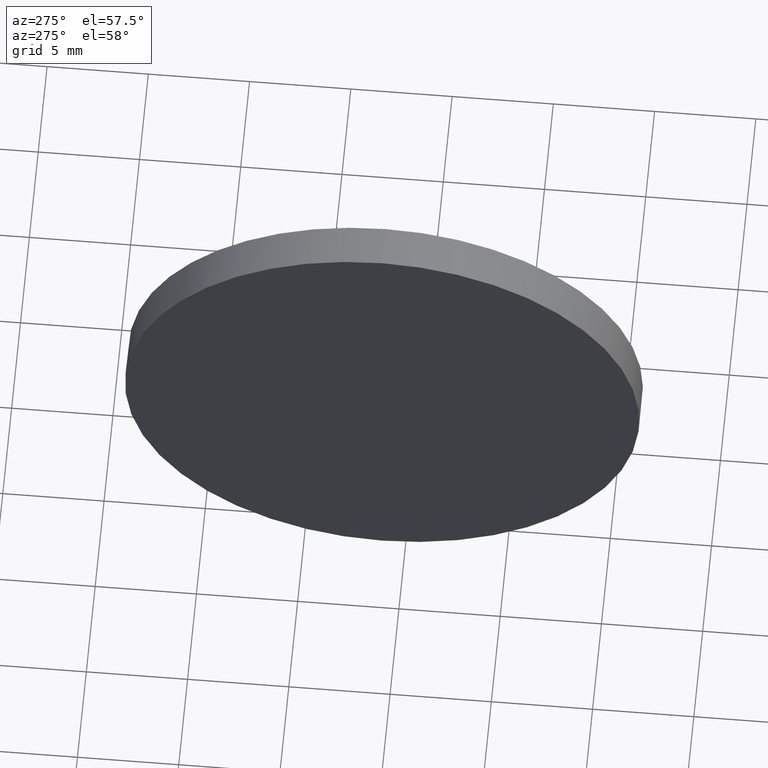
[diagram: clean part render]
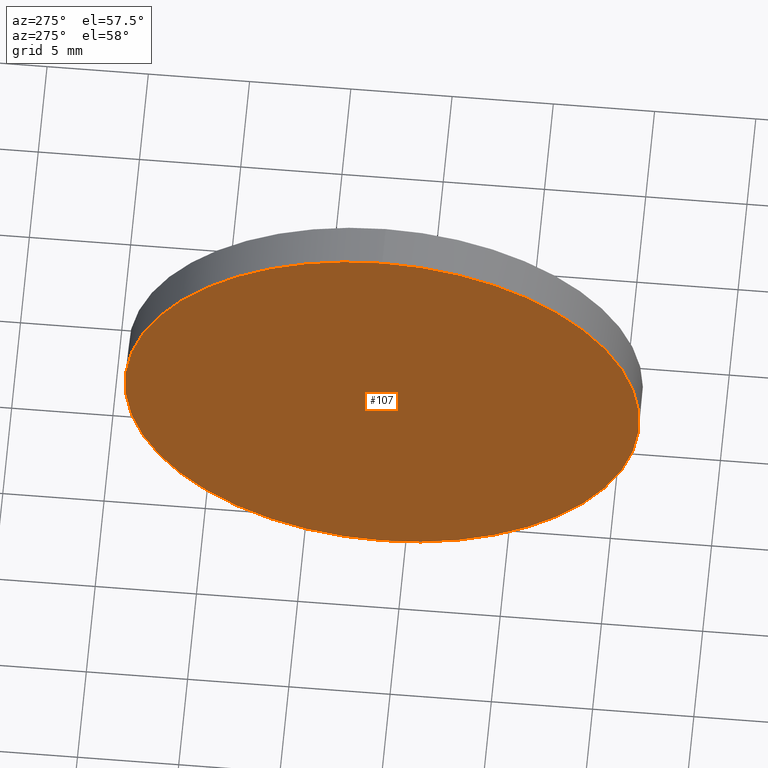
[diagram: same view with one face highlighted and labeled with its STEP entity id]
A machine part, auxiliary view. The second image highlights one B-rep face of the part: STEP entity #107.
In plain terms, the highlighted planar face has unit normal (1, 0, 0).
Its self-contained STEP definition (entity closure, byte-faithful):
#2 = VERTEX_POINT ( 'NONE', #18 ) ;
#10 = ORIENTED_EDGE ( 'NONE', *, *, #79, .T. ) ;
#11 = CIRCLE ( 'NONE', #151, 12.70000000000001700 ) ;
#18 = CARTESIAN_POINT ( 'NONE',  ( 503.5484435145779700, 171.1402879795670300, -12.70000000000001700 ) ) ;
#20 = CARTESIAN_POINT ( 'NONE',  ( 503.5484435145779700, 171.1402879795670300, 0.0000000000000000000 ) ) ;
#32 = DIRECTION ( 'NONE',  ( -1.000000000000000000, -0.0000000000000000000, -0.0000000000000000000 ) ) ;
#73 = DIRECTION ( 'NONE',  ( 1.000000000000000000, 0.0000000000000000000, 0.0000000000000000000 ) ) ;
#79 = EDGE_CURVE ( 'NONE', #2, #145, #184, .T. ) ;
#86 = CARTESIAN_POINT ( 'NONE',  ( 503.5484435145779700, 171.1402879795670300, 0.0000000000000000000 ) ) ;
#98 = PLANE ( 'NONE',  #141 ) ;
#107 = ADVANCED_FACE ( 'NONE', ( #180 ), #98, .F. ) ;
#114 = AXIS2_PLACEMENT_3D ( 'NONE', #117, #32, #176 ) ;
#117 = CARTESIAN_POINT ( 'NONE',  ( 503.5484435145779700, 171.1402879795670300, 0.0000000000000000000 ) ) ;
#118 = EDGE_CURVE ( 'NONE', #145, #2, #11, .T. ) ;
#120 = DIRECTION ( 'NONE',  ( 0.0000000000000000000, 0.0000000000000000000, -1.000000000000000000 ) ) ;
#127 = ORIENTED_EDGE ( 'NONE', *, *, #118, .T. ) ;
#133 = EDGE_LOOP ( 'NONE', ( #127, #10 ) ) ;
#141 = AXIS2_PLACEMENT_3D ( 'NONE', #20, #73, #120 ) ;
#145 = VERTEX_POINT ( 'NONE', #174 ) ;
#151 = AXIS2_PLACEMENT_3D ( 'NONE', #86, #160, #173 ) ;
#160 = DIRECTION ( 'NONE',  ( -1.000000000000000000, -0.0000000000000000000, -0.0000000000000000000 ) ) ;
#173 = DIRECTION ( 'NONE',  ( 0.0000000000000000000, 0.0000000000000000000, 1.000000000000000000 ) ) ;
#174 = CARTESIAN_POINT ( 'NONE',  ( 503.5484435145779700, 171.1402879795670300, 12.70000000000001700 ) ) ;
#176 = DIRECTION ( 'NONE',  ( 0.0000000000000000000, 0.0000000000000000000, 1.000000000000000000 ) ) ;
#180 = FACE_OUTER_BOUND ( 'NONE', #133, .T. ) ;
#184 = CIRCLE ( 'NONE', #114, 12.70000000000001700 ) ;